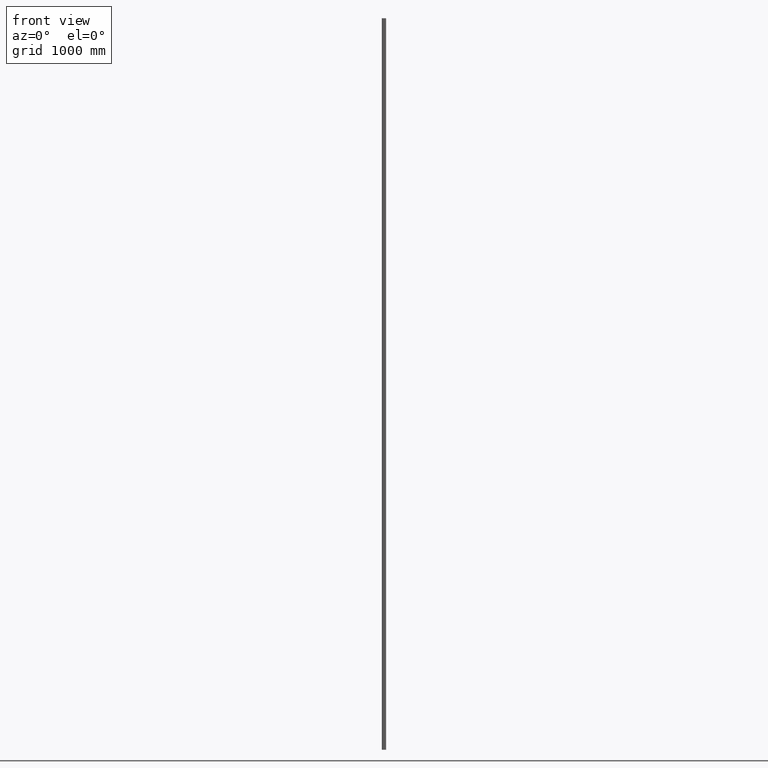
[diagram: clean part render]
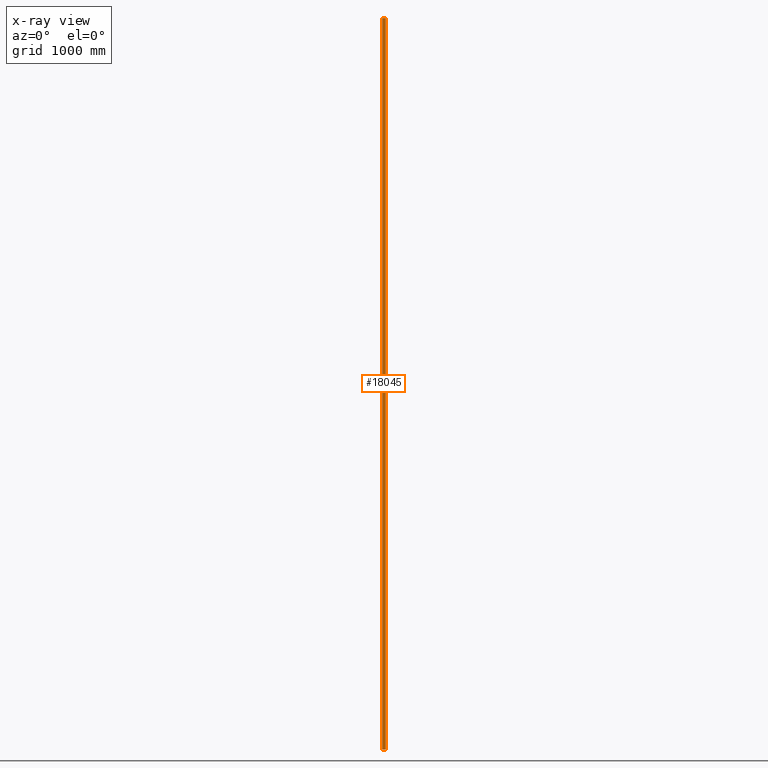
[diagram: x-ray — body ghosted, one internal face saturated and labeled with its STEP entity id]
A machine part, front view, then the same camera in x-ray: the body is ghosted and one INTERNAL B-rep face — a face not visible from any outside direction — is saturated and labeled: STEP entity #18045.
In plain terms, the highlighted planar face has unit normal (0, 1, 0).
Its self-contained STEP definition (entity closure, byte-faithful):
#30 = VECTOR ( 'NONE', #16356, 1000.000000000000000 ) ;
#315 = CARTESIAN_POINT ( 'NONE',  ( -13.49999999889548619, 0.000000000000000000, 3000.000000000000000 ) ) ;
#845 = EDGE_LOOP ( 'NONE', ( #2416, #9699, #14838, #2041 ) ) ;
#2041 = ORIENTED_EDGE ( 'NONE', *, *, #2075, .T. ) ;
#2075 = EDGE_CURVE ( 'NONE', #16543, #7865, #2867, .T. ) ;
#2231 = CARTESIAN_POINT ( 'NONE',  ( 13.49999999889548619, 1.653273178713662662E-15, -3000.000000000000000 ) ) ;
#2416 = ORIENTED_EDGE ( 'NONE', *, *, #18088, .F. ) ;
#2867 = LINE ( 'NONE', #16466, #17903 ) ;
#4227 = DIRECTION ( 'NONE',  ( -0.000000000000000000, -0.000000000000000000, -1.000000000000000000 ) ) ;
#4573 = CARTESIAN_POINT ( 'NONE',  ( -13.49999999889548619, 0.000000000000000000, -3000.000000000000000 ) ) ;
#5169 = CARTESIAN_POINT ( 'NONE',  ( -13.49999999889548619, 0.000000000000000000, -3000.000000000000000 ) ) ;
#7140 = VERTEX_POINT ( 'NONE', #9808 ) ;
#7312 = LINE ( 'NONE', #4573, #30 ) ;
#7802 = FACE_OUTER_BOUND ( 'NONE', #845, .T. ) ;
#7865 = VERTEX_POINT ( 'NONE', #2231 ) ;
#9076 = CARTESIAN_POINT ( 'NONE',  ( 13.49999999889548619, 1.653273178713662662E-15, 3000.000000000000000 ) ) ;
#9699 = ORIENTED_EDGE ( 'NONE', *, *, #18545, .F. ) ;
#9808 = CARTESIAN_POINT ( 'NONE',  ( -13.49999999889548619, 0.000000000000000000, 3000.000000000000000 ) ) ;
#10648 = DIRECTION ( 'NONE',  ( 0.000000000000000000, 1.000000000000000000, 0.000000000000000000 ) ) ;
#11474 = CARTESIAN_POINT ( 'NONE',  ( -13.49999999889548619, 0.000000000000000000, 3000.000000000000000 ) ) ;
#12807 = VECTOR ( 'NONE', #4227, 1000.000000000000000 ) ;
#14414 = VECTOR ( 'NONE', #15543, 1000.000000000000000 ) ;
#14838 = ORIENTED_EDGE ( 'NONE', *, *, #16720, .T. ) ;
#15543 = DIRECTION ( 'NONE',  ( 1.000000000000000000, 0.000000000000000000, 0.000000000000000000 ) ) ;
#15690 = VERTEX_POINT ( 'NONE', #5169 ) ;
#16204 = LINE ( 'NONE', #11474, #12807 ) ;
#16294 = DIRECTION ( 'NONE',  ( 0.000000000000000000, -0.000000000000000000, 1.000000000000000000 ) ) ;
#16356 = DIRECTION ( 'NONE',  ( 1.000000000000000000, 0.000000000000000000, 0.000000000000000000 ) ) ;
#16466 = CARTESIAN_POINT ( 'NONE',  ( 13.49999999889548619, 1.653273178713662662E-15, 3000.000000000000000 ) ) ;
#16543 = VERTEX_POINT ( 'NONE', #9076 ) ;
#16720 = EDGE_CURVE ( 'NONE', #7140, #16543, #18297, .T. ) ;
#16985 = CARTESIAN_POINT ( 'NONE',  ( -13.49999999889548619, 0.000000000000000000, 3000.000000000000000 ) ) ;
#17659 = PLANE ( 'NONE',  #17820 ) ;
#17820 = AXIS2_PLACEMENT_3D ( 'NONE', #315, #10648, #16294 ) ;
#17903 = VECTOR ( 'NONE', #18046, 1000.000000000000000 ) ;
#18045 = ADVANCED_FACE ( 'NONE', ( #7802 ), #17659, .T. ) ;
#18046 = DIRECTION ( 'NONE',  ( 0.000000000000000000, 0.000000000000000000, -1.000000000000000000 ) ) ;
#18088 = EDGE_CURVE ( 'NONE', #15690, #7865, #7312, .T. ) ;
#18297 = LINE ( 'NONE', #16985, #14414 ) ;
#18545 = EDGE_CURVE ( 'NONE', #7140, #15690, #16204, .T. ) ;